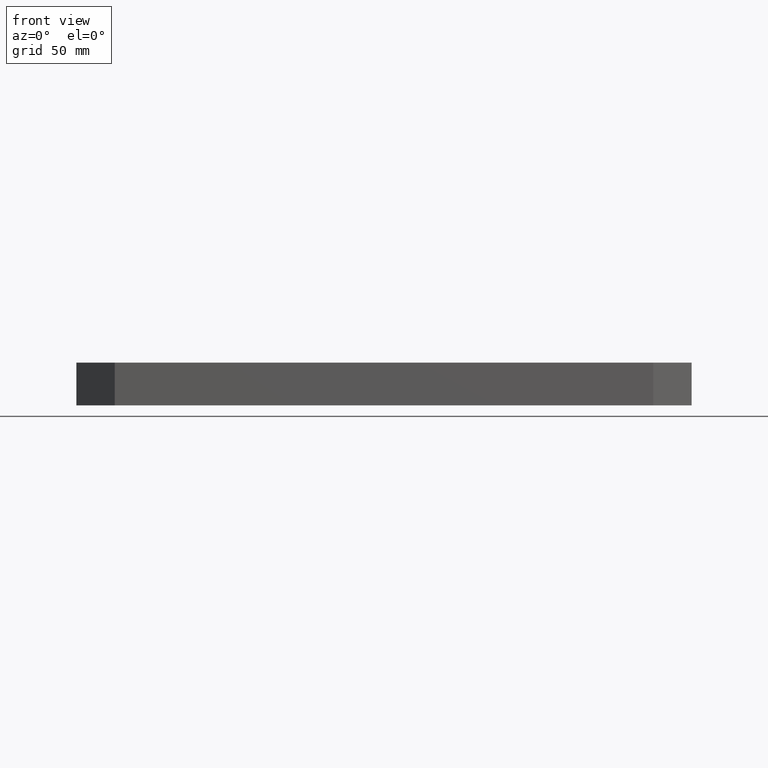
[diagram: clean part render]
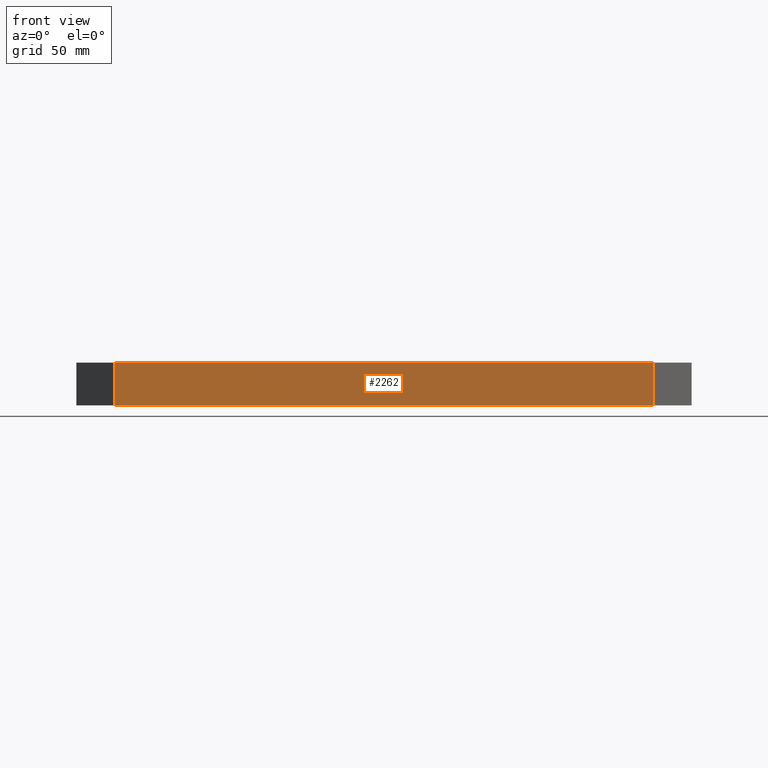
[diagram: same view with one face highlighted and labeled with its STEP entity id]
A machine part, front view. The second image highlights one B-rep face of the part: STEP entity #2262.
In plain terms, the highlighted planar face has unit normal (0, -1, 0).
Its self-contained STEP definition (entity closure, byte-faithful):
#2197=CARTESIAN_POINT('',(157.500000000000060,-115.0,-12.500000000000000));
#2198=VERTEX_POINT('',#2197);
#2215=CARTESIAN_POINT('',(157.500000000000060,-115.0,12.500000000000000));
#2216=VERTEX_POINT('',#2215);
#2223=CARTESIAN_POINT('',(157.500000000000060,-115.0,12.500000000000000));
#2224=DIRECTION('',(0.0,0.0,-1.0));
#2225=VECTOR('',#2224,25.0);
#2226=LINE('',#2223,#2225);
#2227=EDGE_CURVE('',#2216,#2198,#2226,.T.);
#2232=CARTESIAN_POINT('',(-180.000000000000060,-115.0,12.500000000000000));
#2233=DIRECTION('',(0.0,-1.0,0.0));
#2234=DIRECTION('',(0.0,0.0,-1.0));
#2235=AXIS2_PLACEMENT_3D('',#2232,#2233,#2234);
#2236=PLANE('',#2235);
#2237=ORIENTED_EDGE('',*,*,#2227,.F.);
#2238=CARTESIAN_POINT('',(-157.500000000000060,-115.0,12.500000000000000));
#2239=VERTEX_POINT('',#2238);
#2240=CARTESIAN_POINT('',(-157.500000000000060,-115.0,12.500000000000000));
#2241=DIRECTION('',(1.0,0.0,0.0));
#2242=VECTOR('',#2241,315.000000000000110);
#2243=LINE('',#2240,#2242);
#2244=EDGE_CURVE('',#2239,#2216,#2243,.T.);
#2245=ORIENTED_EDGE('',*,*,#2244,.F.);
#2246=CARTESIAN_POINT('',(-157.500000000000060,-115.0,-12.500000000000000));
#2247=VERTEX_POINT('',#2246);
#2248=CARTESIAN_POINT('',(-157.500000000000060,-115.0,-12.500000000000000));
#2249=DIRECTION('',(0.0,0.0,1.0));
#2250=VECTOR('',#2249,25.0);
#2251=LINE('',#2248,#2250);
#2252=EDGE_CURVE('',#2247,#2239,#2251,.T.);
#2253=ORIENTED_EDGE('',*,*,#2252,.F.);
#2254=CARTESIAN_POINT('',(-157.500000000000060,-115.0,-12.500000000000000));
#2255=DIRECTION('',(1.0,0.0,0.0));
#2256=VECTOR('',#2255,315.000000000000110);
#2257=LINE('',#2254,#2256);
#2258=EDGE_CURVE('',#2247,#2198,#2257,.T.);
#2259=ORIENTED_EDGE('',*,*,#2258,.T.);
#2260=EDGE_LOOP('',(#2237,#2245,#2253,#2259));
#2261=FACE_OUTER_BOUND('',#2260,.T.);
#2262=ADVANCED_FACE('',(#2261),#2236,.T.);